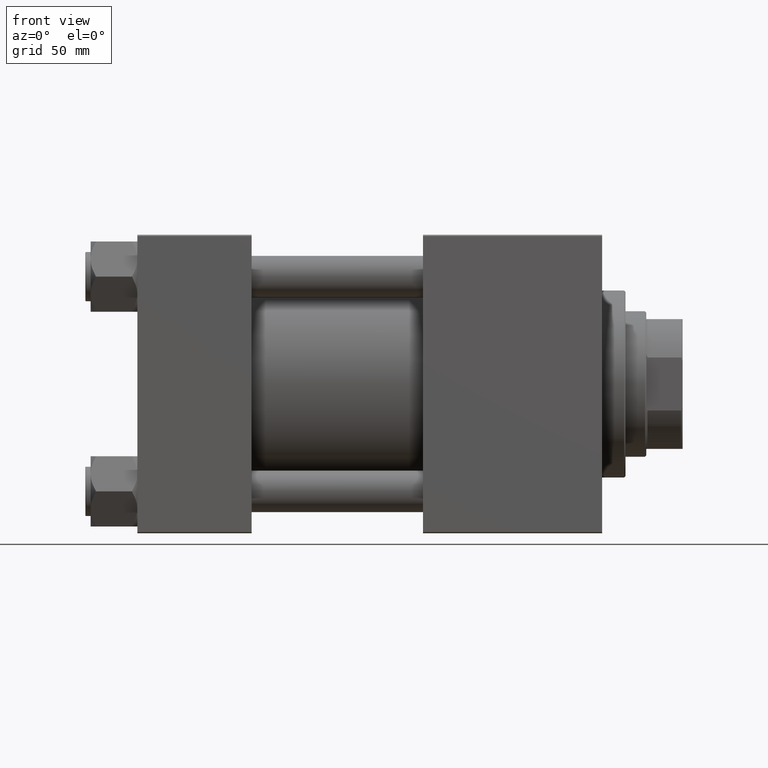
[diagram: clean part render]
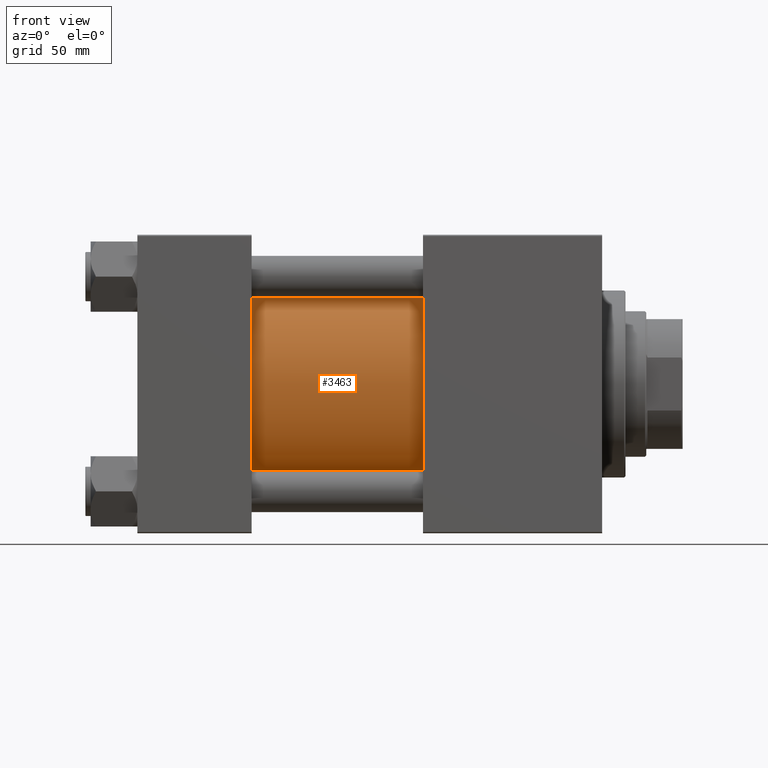
[diagram: same view with one face highlighted and labeled with its STEP entity id]
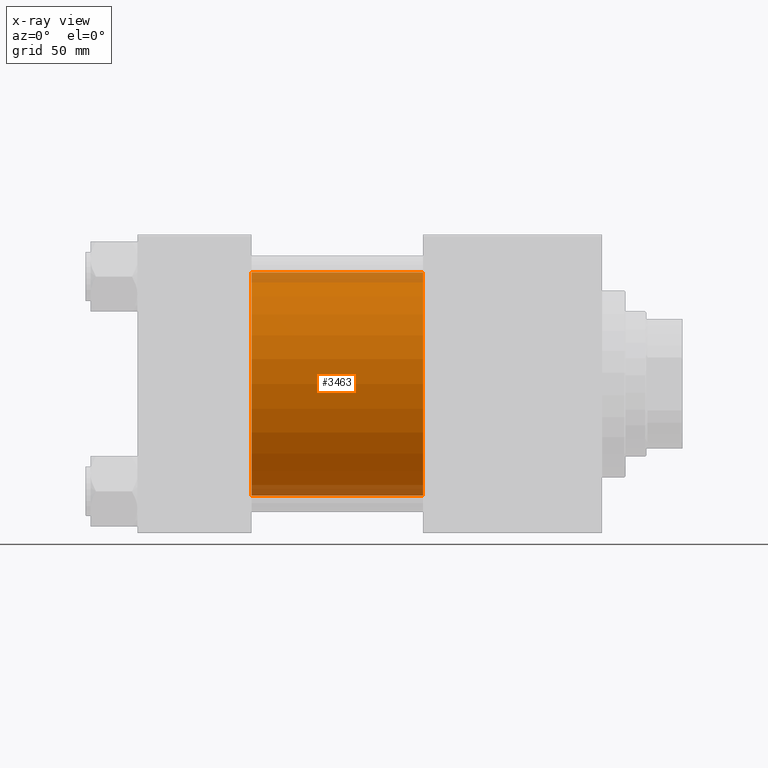
[diagram: x-ray of the same camera — body ghosted, the highlighted face saturated]
A machine part, front view. The second image highlights one B-rep face of the part: STEP entity #3463.
The next image is the same camera in x-ray: the body ghosted, the highlighted face saturated — about 9% of this face is hidden behind the body in this view.
In plain terms, the highlighted cylindrical surface (partial cylindrical patch) has radius 43 mm, axis along (-1, -0, -0).
Its self-contained STEP definition (entity closure, byte-faithful):
#962 = VERTEX_POINT ( 'NONE', #20846 ) ;
#1681 = DIRECTION ( 'NONE',  ( -1.000000000000000000, -0.000000000000000000, -0.000000000000000000 ) ) ;
#2161 = VERTEX_POINT ( 'NONE', #35649 ) ;
#2261 = DIRECTION ( 'NONE',  ( 0.000000000000000000, 0.000000000000000000, 1.000000000000000000 ) ) ;
#3463 = ADVANCED_FACE ( 'NONE', ( #10095 ), #25478, .T. ) ;
#9306 = ORIENTED_EDGE ( 'NONE', *, *, #19040, .F. ) ;
#10095 = FACE_OUTER_BOUND ( 'NONE', #37652, .T. ) ;
#11834 = LINE ( 'NONE', #15428, #23143 ) ;
#14913 = CARTESIAN_POINT ( 'NONE',  ( 110.0000000000000000, -2.602085213965210642E-15, 0.000000000000000000 ) ) ;
#15428 = CARTESIAN_POINT ( 'NONE',  ( 110.0000000000000000, -2.602085213965210642E-15, 43.00000000000000000 ) ) ;
#18559 = LINE ( 'NONE', #31605, #21581 ) ;
#18767 = DIRECTION ( 'NONE',  ( -1.000000000000000000, -0.000000000000000000, -0.000000000000000000 ) ) ;
#19040 = EDGE_CURVE ( 'NONE', #962, #37598, #45149, .T. ) ;
#20846 = CARTESIAN_POINT ( 'NONE',  ( 110.0000000000000000, -2.602085213965210642E-15, 43.00000000000000000 ) ) ;
#21581 = VECTOR ( 'NONE', #38780, 1000.000000000000000 ) ;
#21713 = CARTESIAN_POINT ( 'NONE',  ( 44.00000000000000000, -2.602085213965210642E-15, 0.000000000000000000 ) ) ;
#22081 = EDGE_CURVE ( 'NONE', #962, #2161, #11834, .T. ) ;
#22678 = AXIS2_PLACEMENT_3D ( 'NONE', #41350, #1681, #37010 ) ;
#23143 = VECTOR ( 'NONE', #18767, 1000.000000000000000 ) ;
#25085 = EDGE_CURVE ( 'NONE', #37598, #41966, #18559, .T. ) ;
#25478 = CYLINDRICAL_SURFACE ( 'NONE', #22678, 43.00000000000000000 ) ;
#27162 = ORIENTED_EDGE ( 'NONE', *, *, #33131, .T. ) ;
#27193 = DIRECTION ( 'NONE',  ( 1.000000000000000000, 0.000000000000000000, 0.000000000000000000 ) ) ;
#30526 = DIRECTION ( 'NONE',  ( 0.000000000000000000, 0.000000000000000000, -1.000000000000000000 ) ) ;
#31605 = CARTESIAN_POINT ( 'NONE',  ( 110.0000000000000000, 2.663896022368408223E-15, -43.00000000000000000 ) ) ;
#32058 = AXIS2_PLACEMENT_3D ( 'NONE', #14913, #27193, #30526 ) ;
#33131 = EDGE_CURVE ( 'NONE', #2161, #41966, #43046, .T. ) ;
#33252 = AXIS2_PLACEMENT_3D ( 'NONE', #21713, #37349, #2261 ) ;
#35649 = CARTESIAN_POINT ( 'NONE',  ( 44.00000000000000000, -2.602085213965210642E-15, 43.00000000000000000 ) ) ;
#37010 = DIRECTION ( 'NONE',  ( 0.000000000000000000, 0.000000000000000000, 1.000000000000000000 ) ) ;
#37349 = DIRECTION ( 'NONE',  ( 1.000000000000000000, -0.000000000000000000, 0.000000000000000000 ) ) ;
#37598 = VERTEX_POINT ( 'NONE', #49659 ) ;
#37652 = EDGE_LOOP ( 'NONE', ( #43301, #9306, #50659, #27162 ) ) ;
#38780 = DIRECTION ( 'NONE',  ( -1.000000000000000000, -0.000000000000000000, -0.000000000000000000 ) ) ;
#41350 = CARTESIAN_POINT ( 'NONE',  ( 110.0000000000000000, -2.602085213965210642E-15, 0.000000000000000000 ) ) ;
#41966 = VERTEX_POINT ( 'NONE', #50287 ) ;
#43046 = CIRCLE ( 'NONE', #33252, 43.00000000000000000 ) ;
#43301 = ORIENTED_EDGE ( 'NONE', *, *, #25085, .F. ) ;
#45149 = CIRCLE ( 'NONE', #32058, 43.00000000000000000 ) ;
#49659 = CARTESIAN_POINT ( 'NONE',  ( 110.0000000000000000, 2.663896022368408223E-15, -43.00000000000000000 ) ) ;
#50287 = CARTESIAN_POINT ( 'NONE',  ( 44.00000000000000000, 2.663896022368408223E-15, -43.00000000000000000 ) ) ;
#50659 = ORIENTED_EDGE ( 'NONE', *, *, #22081, .T. ) ;